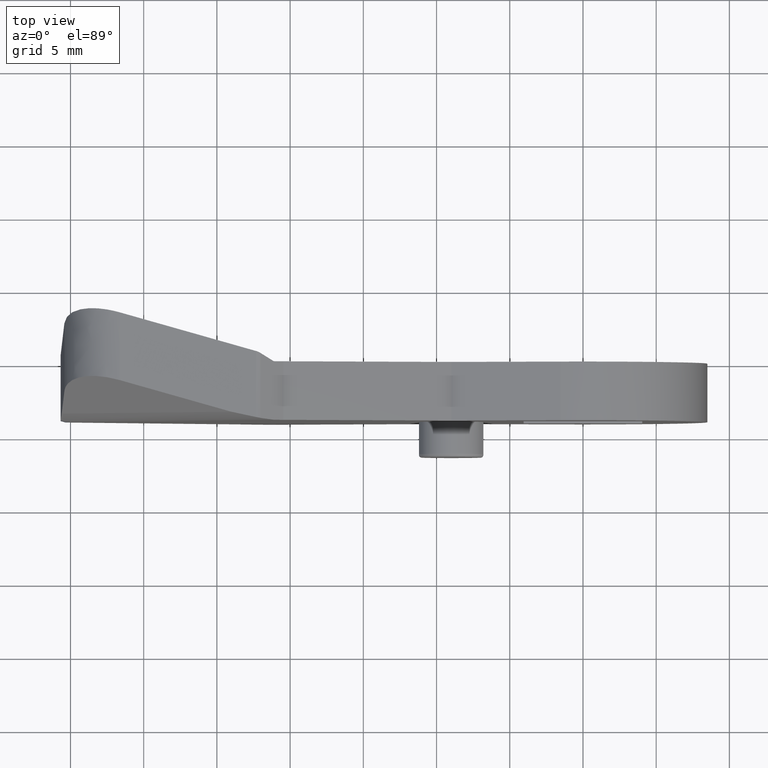
[diagram: clean part render]
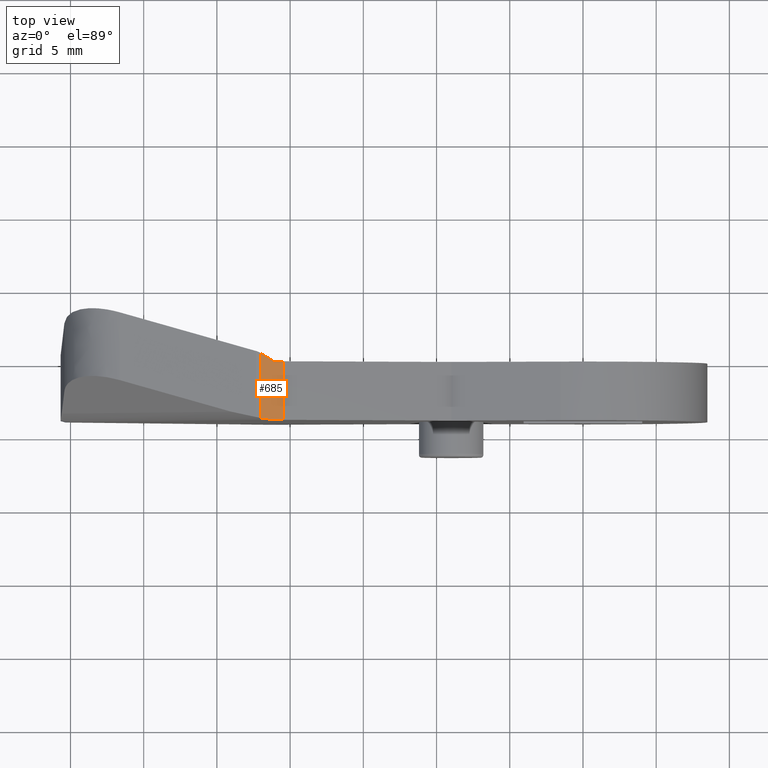
[diagram: same view with one face highlighted and labeled with its STEP entity id]
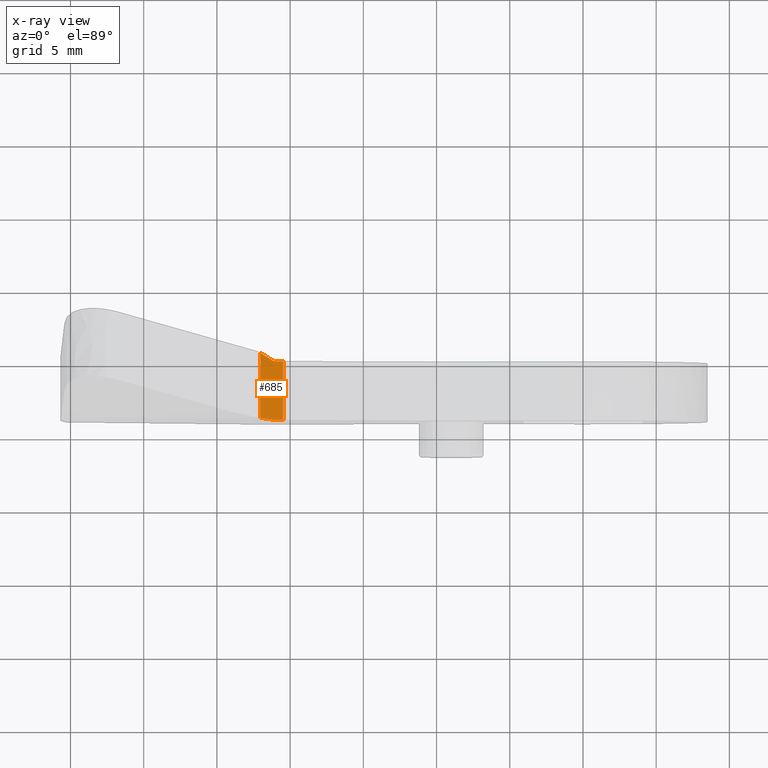
[diagram: x-ray of the same camera — body ghosted, the highlighted face saturated]
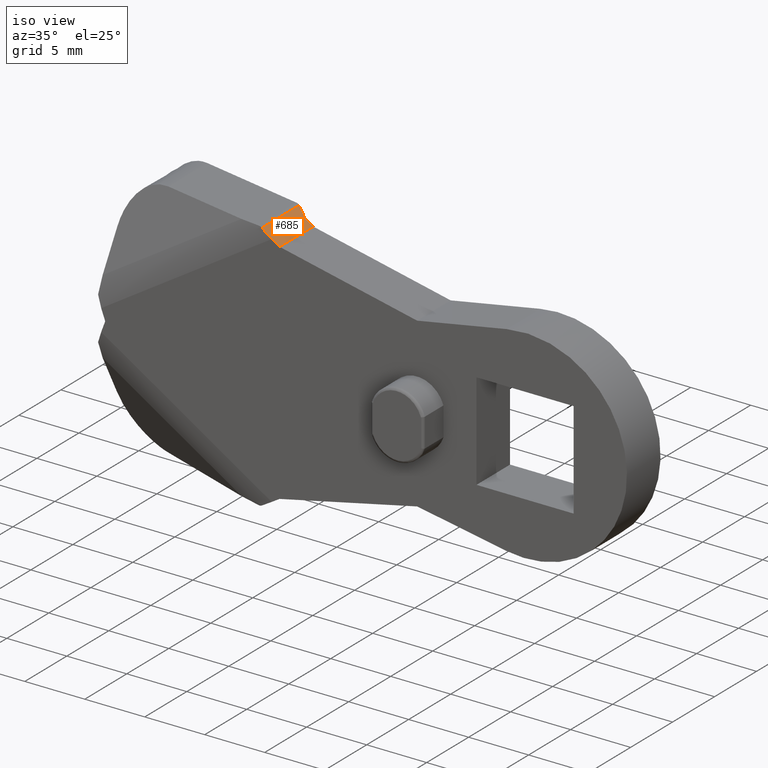
[diagram: same view with one face highlighted and labeled with its STEP entity id]
A machine part, top view. The second image highlights one B-rep face of the part: STEP entity #685.
The next image is the same camera in x-ray: the body ghosted, the highlighted face saturated — about 0% of this face is hidden behind the body in this view.
A second angle (iso view) of the same face is appended — the face is thin or edge-on in the first view.
In plain terms, the highlighted face is a freeform B-spline surface patch.
Its self-contained STEP definition (entity closure, byte-faithful):
#60=CARTESIAN_POINT('',(-22.030517662878101,0.558393820271253,10.461067315452521));
#61=VERTEX_POINT('',#60);
#82=CARTESIAN_POINT('',(-22.030517662878101,-3.883235928906450,10.461067315452521));
#83=VERTEX_POINT('',#82);
#95=CARTESIAN_POINT('',(-22.030517662878101,0.558393820271253,10.461067315452521));
#96=CARTESIAN_POINT('',(-22.030517662878101,-3.883235928906450,10.461067315452521));
#97=QUASI_UNIFORM_CURVE('',1,(#95,#96),.UNSPECIFIED.,.F.,.U.);
#98=EDGE_CURVE('',#61,#83,#97,.T.);
#327=CARTESIAN_POINT('',(-21.120222960138801,-4.000000189989805,9.901939888109700));
#328=VERTEX_POINT('',#327);
#329=CARTESIAN_POINT('',(-22.030517662878101,-3.883235928906448,10.461067315452521));
#330=CARTESIAN_POINT('',(-21.582111825517011,-4.000000189989805,10.185644420543067));
#331=CARTESIAN_POINT('',(-21.120222960138801,-4.000000189989805,9.901939888109711));
#339=(BOUNDED_CURVE()B_SPLINE_CURVE(2,(#329,#330,#331),.UNSPECIFIED.,.F.,.U.)CURVE()GEOMETRIC_REPRESENTATION_ITEM()QUASI_UNIFORM_CURVE()RATIONAL_B_SPLINE_CURVE((1.0,0.992675408864670,1.0))REPRESENTATION_ITEM(''));
#340=EDGE_CURVE('',#83,#328,#339,.T.);
#650=CARTESIAN_POINT('',(-22.108673217506102,-4.227691790803526,10.509072553822261));
#651=CARTESIAN_POINT('',(-20.387683772880472,-4.227691790803526,9.451994667109291));
#652=CARTESIAN_POINT('',(-22.108673217506102,0.786085706371503,10.509072553822261));
#653=CARTESIAN_POINT('',(-20.387683772880472,0.786085706371503,9.451994667109291));
#654=B_SPLINE_SURFACE_WITH_KNOTS('',1,1,((#650,#652),(#651,#653)),.UNSPECIFIED.,.F.,.F.,.U.,(2,2),(2,2),(0.0,2.019707485526161),(0.0,5.013777497175029),.UNSPECIFIED.);
#655=CARTESIAN_POINT('',(-21.120222911500250,2.775558E-014,9.901939858234590));
#656=VERTEX_POINT('',#655);
#657=CARTESIAN_POINT('',(-21.120222911500250,2.775558E-014,9.901939858234590));
#658=CARTESIAN_POINT('',(-22.030517662878101,0.558393820271253,10.461067315452521));
#659=QUASI_UNIFORM_CURVE('',1,(#657,#658),.UNSPECIFIED.,.F.,.U.);
#660=EDGE_CURVE('',#656,#61,#659,.T.);
#661=ORIENTED_EDGE('',*,*,#660,.T.);
#662=ORIENTED_EDGE('',*,*,#98,.T.);
#663=ORIENTED_EDGE('',*,*,#340,.T.);
#664=CARTESIAN_POINT('',(-20.465839481394600,-4.000000189989805,9.500000000000000));
#665=VERTEX_POINT('',#664);
#666=CARTESIAN_POINT('',(-21.120222960138801,-4.000000189989805,9.901939888109700));
#667=CARTESIAN_POINT('',(-20.465839481394600,-4.000000189989805,9.500000000000000));
#668=QUASI_UNIFORM_CURVE('',1,(#666,#667),.UNSPECIFIED.,.F.,.U.);
#669=EDGE_CURVE('',#328,#665,#668,.T.);
#670=ORIENTED_EDGE('',*,*,#669,.T.);
#671=CARTESIAN_POINT('',(-20.465839481390098,0.0,9.499999999999062));
#672=VERTEX_POINT('',#671);
#673=CARTESIAN_POINT('',(-20.465839481394600,-4.000000189989805,9.500000000000000));
#674=CARTESIAN_POINT('',(-20.465839481390098,0.0,9.499999999999062));
#675=QUASI_UNIFORM_CURVE('',1,(#673,#674),.UNSPECIFIED.,.F.,.U.);
#676=EDGE_CURVE('',#665,#672,#675,.T.);
#677=ORIENTED_EDGE('',*,*,#676,.T.);
#678=CARTESIAN_POINT('',(-21.120222911500250,2.775558E-014,9.901939858234590));
#679=CARTESIAN_POINT('',(-20.465839481390098,0.0,9.499999999999062));
#680=QUASI_UNIFORM_CURVE('',1,(#678,#679),.UNSPECIFIED.,.F.,.U.);
#681=EDGE_CURVE('',#656,#672,#680,.T.);
#682=ORIENTED_EDGE('',*,*,#681,.F.);
#683=EDGE_LOOP('',(#661,#662,#663,#670,#677,#682));
#684=FACE_OUTER_BOUND('',#683,.T.);
#685=ADVANCED_FACE('',(#684),#654,.T.);